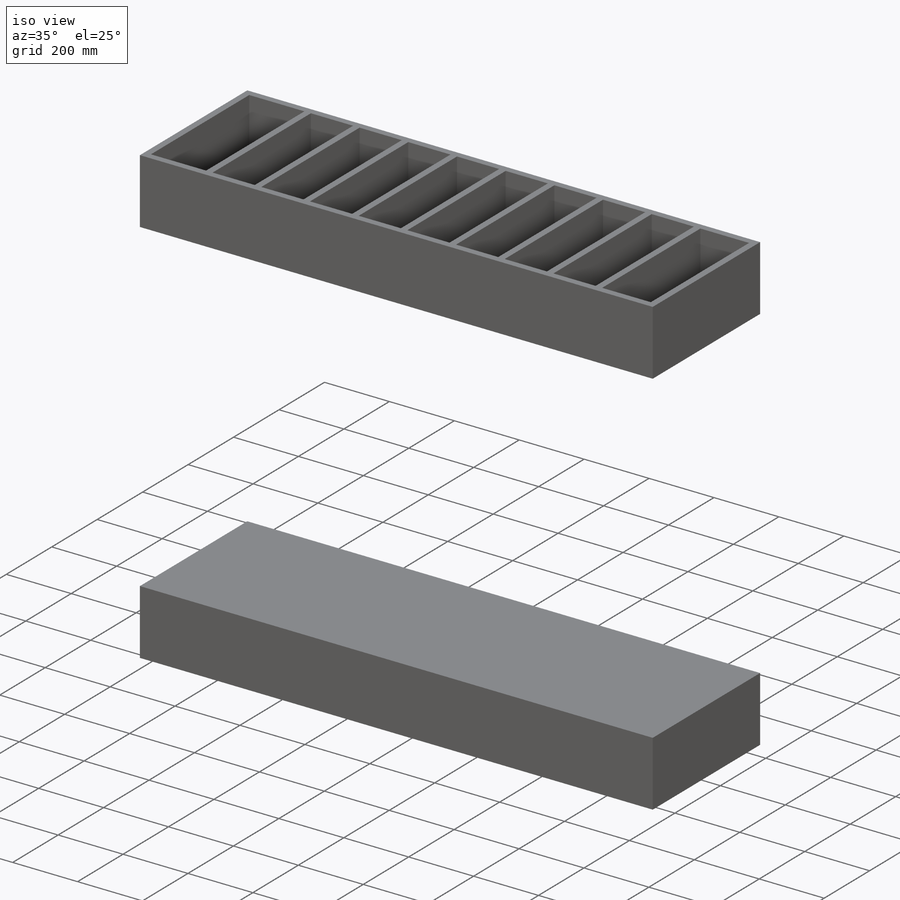
[diagram: iso view]
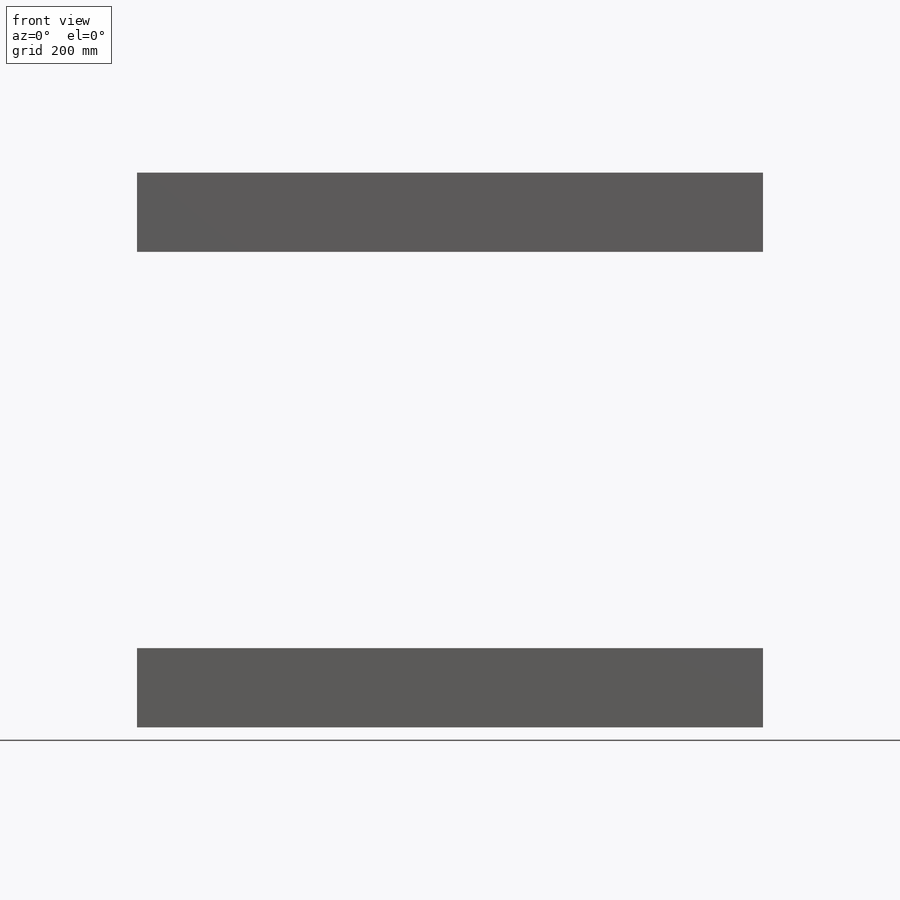
[diagram: front view]
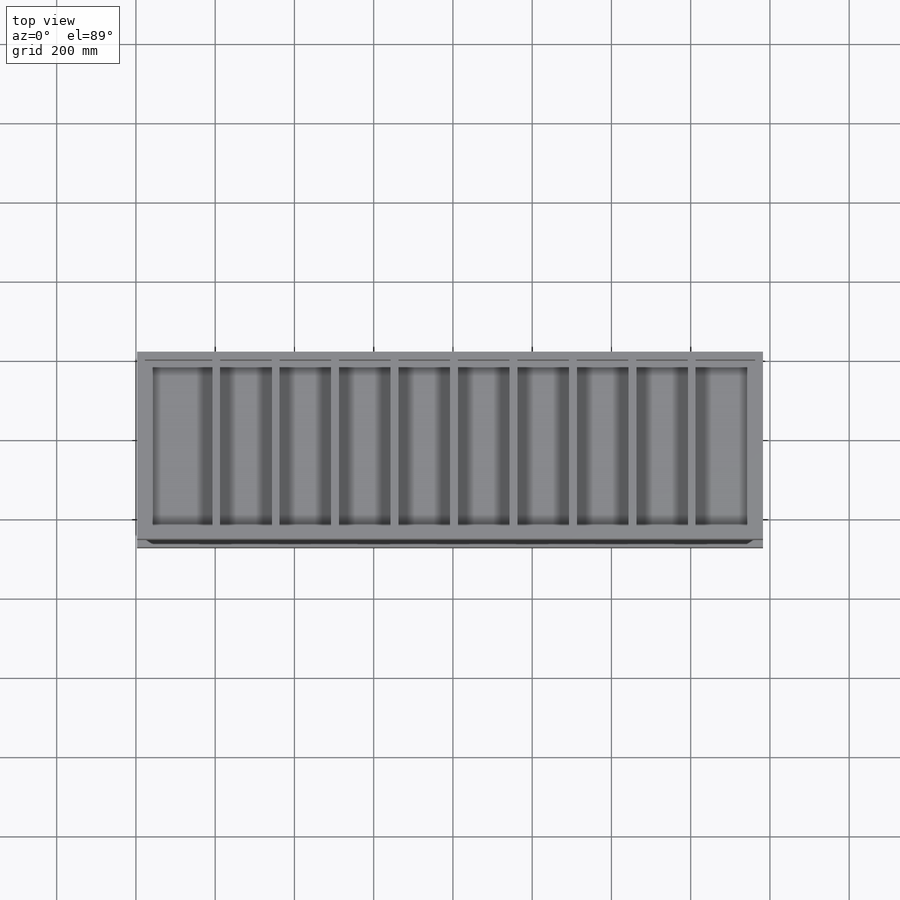
[diagram: top view]
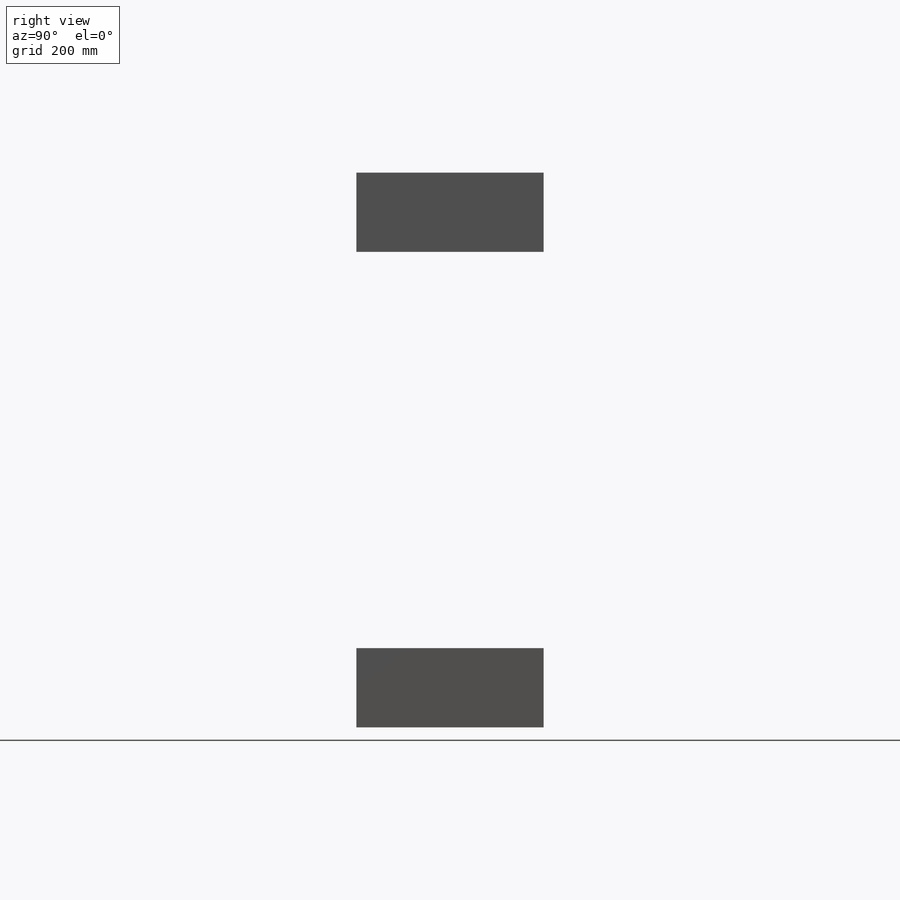
[diagram: right view]
SOLIDWORKS PART (.sldprt)
format: sldprt  version: not decoded by parser v0  size: 345,088 bytes
history: native  units: mm
features: sketch x3, extrude x3, shell x2, pattern_linear x2, material x1 (+16 scaffold rows collapsed)
feature tree (27):
  scaffold x16  (default folders/planes/origin — collapsed)
  material  "Material <not specified>"
  sketch  "Sketch2"  dims[D1=1580.0mm D2=200.0mm D3=500.0mm D4=25.0mm]
  extrude  "Extrude1"  [1 undecoded]
  shell  "Shell1"  Thickness=20mm
  shell  "Shell2"  Thickness=20mm
  sketch  "Sketch3"  dims[D1=20.0mm D2=150.0mm]
  extrude  "Extrude2"  [1 undecoded]
  pattern_linear  "LPattern1"  Count1=9 Count2=1 Spacing1=150mm Spacing2=10mm
  sketch  "Sketch4"  dims[D1=150.0mm D2=20.0mm]
  extrude  "Extrude3"  [1 undecoded]
  pattern_linear  "LPattern2"  Count1=9 Count2=1 Spacing1=150mm Spacing2=10mm
decode coverage: 7 of 10 modeling features carry decoded parameters
note: 3 parameter values undecoded
summary: no parameter record found for 3 features
note: suppression state not decoded; provenance and decode notes live in map.json
